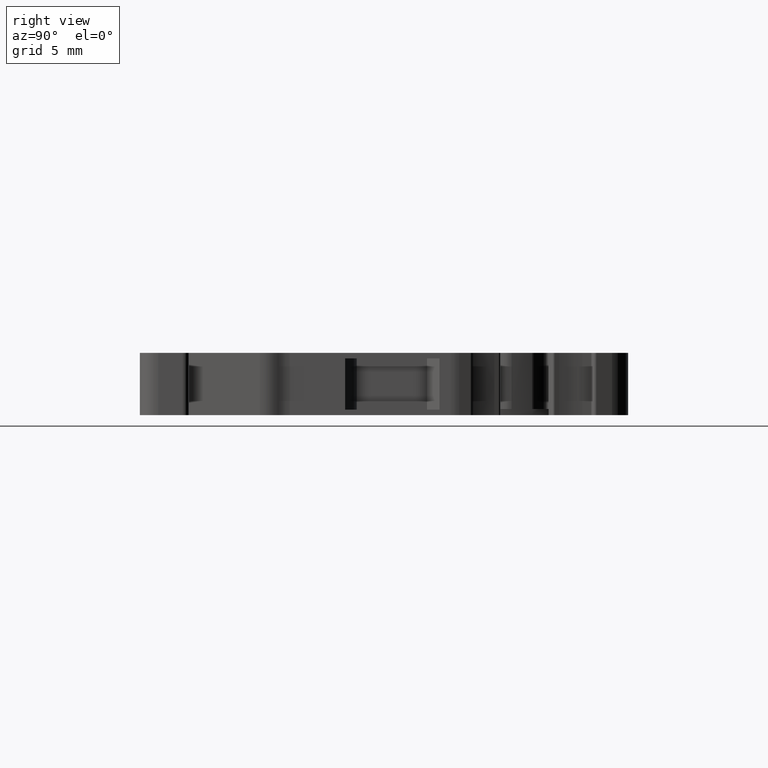
[diagram: clean part render]
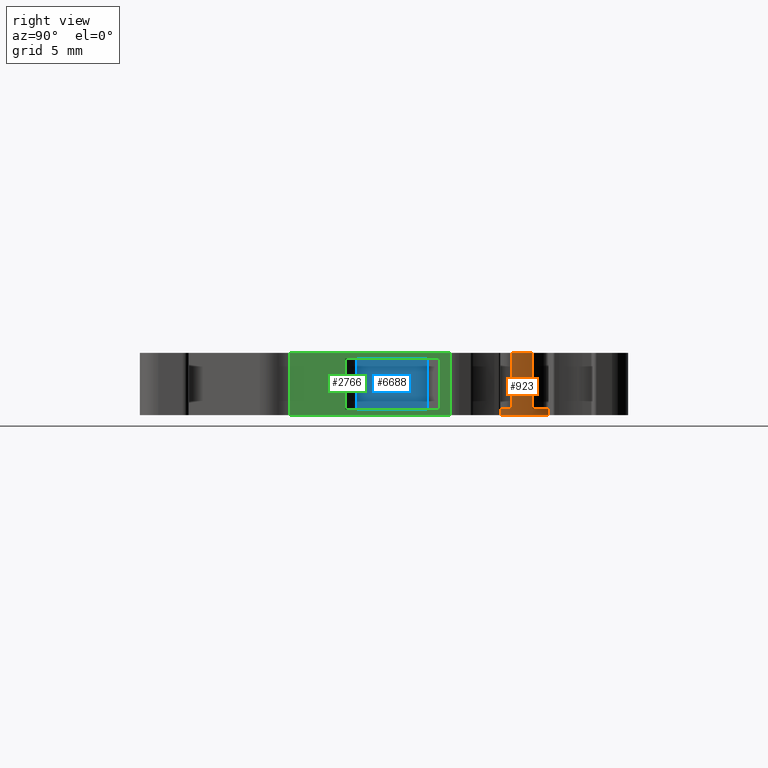
[diagram: same view with three faces highlighted in distinct colors, each labeled with its STEP entity id]
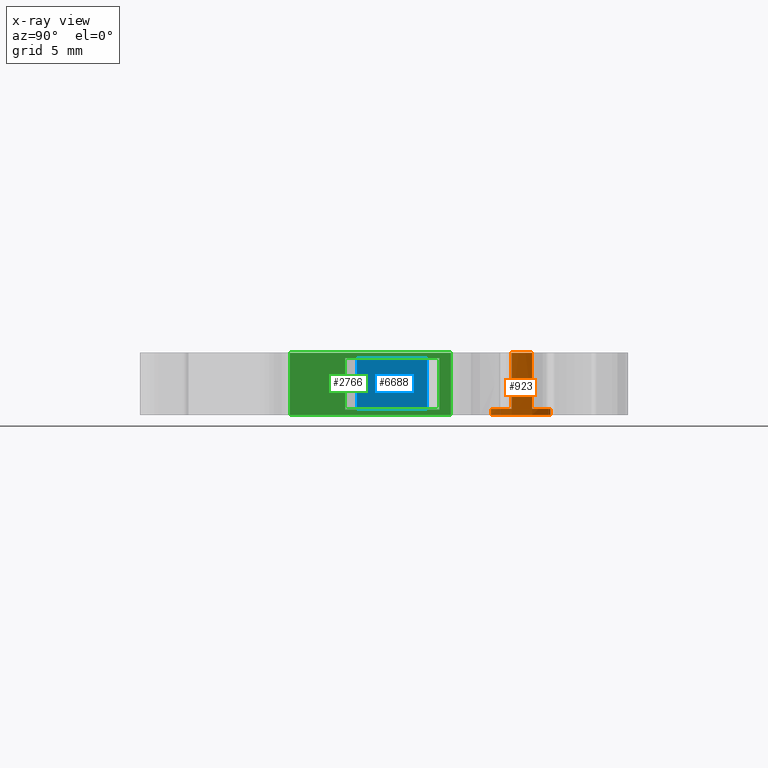
[diagram: x-ray of the same camera — body ghosted, the three highlighted faces saturated]
A machine part, right view with three faces highlighted in distinct colors.
The next image is the same camera in x-ray (body ghosted, the three faces saturated) — at least one of them is partly hidden behind the body in this view.
Their STEP definitions:

[orange] entity #923 — the highlighted cylindrical surface (partial cylindrical patch) has radius 10 mm, axis along (0, 0, 1).
#37 = FACE_OUTER_BOUND ( 'NONE', #2927, .T. ) ;
#88 = LINE ( 'NONE', #1789, #7217 ) ;
#91 = DIRECTION ( 'NONE',  ( 0.0000000000000000000, 0.0000000000000000000, -1.000000000000000000 ) ) ;
#115 = CARTESIAN_POINT ( 'NONE',  ( 1465.851264466720100, 945.3661758015759900, -47.55000000000000400 ) ) ;
#176 = CIRCLE ( 'NONE', #4218, 9.999999999999564800 ) ;
#200 = VERTEX_POINT ( 'NONE', #1953 ) ;
#275 = AXIS2_PLACEMENT_3D ( 'NONE', #115, #5643, #5671 ) ;
#331 = EDGE_CURVE ( 'NONE', #4099, #1749, #921, .T. ) ;
#523 = DIRECTION ( 'NONE',  ( 0.0000000000000000000, 0.0000000000000000000, -1.000000000000000000 ) ) ;
#684 = AXIS2_PLACEMENT_3D ( 'NONE', #7539, #8324, #4808 ) ;
#702 = CARTESIAN_POINT ( 'NONE',  ( 1465.851264466720100, 945.3661758015759900, -48.05000000000000400 ) ) ;
#813 = EDGE_CURVE ( 'NONE', #6257, #8623, #5414, .T. ) ;
#921 = CIRCLE ( 'NONE', #684, 10.00000000000023100 ) ;
#923 = ADVANCED_FACE ( 'NONE', ( #37 ), #8716, .T. ) ;
#971 = EDGE_CURVE ( 'NONE', #7313, #6257, #4530, .T. ) ;
#1104 = CARTESIAN_POINT ( 'NONE',  ( 1474.032254016908200, 951.1169505302278800, -47.55000000000000400 ) ) ;
#1247 = CARTESIAN_POINT ( 'NONE',  ( 1465.851264466720100, 945.3661758015759900, -47.55000000000000400 ) ) ;
#1369 = CARTESIAN_POINT ( 'NONE',  ( 1475.516388186390000, 947.9323760048860100, -42.94999999999999600 ) ) ;
#1727 = EDGE_CURVE ( 'NONE', #2644, #200, #4605, .T. ) ;
#1733 = DIRECTION ( 'NONE',  ( 0.0000000000000000000, 0.0000000000000000000, -1.000000000000000000 ) ) ;
#1739 = CARTESIAN_POINT ( 'NONE',  ( 1465.851264466720100, 945.3661758015759900, -48.79999999999999700 ) ) ;
#1749 = VERTEX_POINT ( 'NONE', #4304 ) ;
#1773 = ORIENTED_EDGE ( 'NONE', *, *, #813, .T. ) ;
#1789 = CARTESIAN_POINT ( 'NONE',  ( 1474.904638512021800, 949.6131062690830000, -43.60000000000000100 ) ) ;
#1953 = CARTESIAN_POINT ( 'NONE',  ( 1474.904638512021800, 949.6131062690830000, -47.55000000000000400 ) ) ;
#2018 = ORIENTED_EDGE ( 'NONE', *, *, #5631, .T. ) ;
#2143 = CARTESIAN_POINT ( 'NONE',  ( 1475.516387835675000, 947.9323773257891600, -47.55000000000000400 ) ) ;
#2183 = VECTOR ( 'NONE', #1733, 1000.000000000000000 ) ;
#2279 = EDGE_CURVE ( 'NONE', #4099, #6030, #7769, .T. ) ;
#2644 = VERTEX_POINT ( 'NONE', #1104 ) ;
#2665 = ORIENTED_EDGE ( 'NONE', *, *, #2279, .T. ) ;
#2703 = EDGE_CURVE ( 'NONE', #1749, #200, #88, .T. ) ;
#2927 = EDGE_LOOP ( 'NONE', ( #1773, #6901, #6608, #8776, #8206, #2665, #2018, #3823 ) ) ;
#3116 = CARTESIAN_POINT ( 'NONE',  ( 1474.032254016908200, 951.1169505302278800, -47.55000000000000400 ) ) ;
#3126 = DIRECTION ( 'NONE',  ( 0.0000000000000000000, 0.0000000000000000000, 1.000000000000000000 ) ) ;
#3254 = AXIS2_PLACEMENT_3D ( 'NONE', #1739, #3126, #3775 ) ;
#3593 = CARTESIAN_POINT ( 'NONE',  ( 1475.516388186390000, 947.9323760048860100, -43.60000000000000100 ) ) ;
#3775 = DIRECTION ( 'NONE',  ( 1.000000000000000000, 0.0000000000000000000, 0.0000000000000000000 ) ) ;
#3823 = ORIENTED_EDGE ( 'NONE', *, *, #971, .T. ) ;
#4008 = AXIS2_PLACEMENT_3D ( 'NONE', #702, #7615, #6211 ) ;
#4099 = VERTEX_POINT ( 'NONE', #1369 ) ;
#4218 = AXIS2_PLACEMENT_3D ( 'NONE', #1247, #523, #6031 ) ;
#4304 = CARTESIAN_POINT ( 'NONE',  ( 1474.904638512021800, 949.6131062690830000, -42.94999999999999600 ) ) ;
#4445 = DIRECTION ( 'NONE',  ( 0.0000000000000000000, 0.0000000000000000000, -1.000000000000000000 ) ) ;
#4530 = LINE ( 'NONE', #7942, #8489 ) ;
#4605 = CIRCLE ( 'NONE', #275, 9.999999999999564800 ) ;
#4808 = DIRECTION ( 'NONE',  ( -1.000000000000000000, -6.661338147750785300E-014, 0.0000000000000000000 ) ) ;
#5262 = DIRECTION ( 'NONE',  ( 0.0000000000000000000, 0.0000000000000000000, -1.000000000000000000 ) ) ;
#5414 = CIRCLE ( 'NONE', #4008, 10.00000000000023100 ) ;
#5474 = CARTESIAN_POINT ( 'NONE',  ( 1475.814780077720300, 946.2196139477476900, -47.55000000000000400 ) ) ;
#5631 = EDGE_CURVE ( 'NONE', #6030, #7313, #176, .T. ) ;
#5643 = DIRECTION ( 'NONE',  ( 0.0000000000000000000, 0.0000000000000000000, -1.000000000000000000 ) ) ;
#5671 = DIRECTION ( 'NONE',  ( -1.000000000000000000, 0.0000000000000000000, 0.0000000000000000000 ) ) ;
#5692 = CARTESIAN_POINT ( 'NONE',  ( 1474.032254016908200, 951.1169505302278800, -48.05000000000000400 ) ) ;
#6030 = VERTEX_POINT ( 'NONE', #2143 ) ;
#6031 = DIRECTION ( 'NONE',  ( -1.000000000000000000, 0.0000000000000000000, 0.0000000000000000000 ) ) ;
#6211 = DIRECTION ( 'NONE',  ( 1.000000000000000000, 0.0000000000000000000, 0.0000000000000000000 ) ) ;
#6257 = VERTEX_POINT ( 'NONE', #7337 ) ;
#6282 = LINE ( 'NONE', #3116, #2183 ) ;
#6608 = ORIENTED_EDGE ( 'NONE', *, *, #1727, .T. ) ;
#6901 = ORIENTED_EDGE ( 'NONE', *, *, #7051, .F. ) ;
#7051 = EDGE_CURVE ( 'NONE', #2644, #8623, #6282, .T. ) ;
#7217 = VECTOR ( 'NONE', #5262, 1000.000000000000000 ) ;
#7313 = VERTEX_POINT ( 'NONE', #5474 ) ;
#7337 = CARTESIAN_POINT ( 'NONE',  ( 1475.814780077720300, 946.2196139477476900, -48.05000000000000400 ) ) ;
#7539 = CARTESIAN_POINT ( 'NONE',  ( 1465.851264466720100, 945.3661758015759900, -42.94999999999999600 ) ) ;
#7615 = DIRECTION ( 'NONE',  ( 0.0000000000000000000, -0.0000000000000000000, 1.000000000000000000 ) ) ;
#7769 = LINE ( 'NONE', #3593, #8989 ) ;
#7942 = CARTESIAN_POINT ( 'NONE',  ( 1475.814780077720300, 946.2196139477476900, -47.55000000000000400 ) ) ;
#8206 = ORIENTED_EDGE ( 'NONE', *, *, #331, .F. ) ;
#8324 = DIRECTION ( 'NONE',  ( -0.0000000000000000000, -0.0000000000000000000, 1.000000000000000000 ) ) ;
#8489 = VECTOR ( 'NONE', #4445, 1000.000000000000000 ) ;
#8623 = VERTEX_POINT ( 'NONE', #5692 ) ;
#8716 = CYLINDRICAL_SURFACE ( 'NONE', #3254, 10.00000000000023100 ) ;
#8776 = ORIENTED_EDGE ( 'NONE', *, *, #2703, .F. ) ;
#8989 = VECTOR ( 'NONE', #91, 1000.000000000000000 ) ;

[blue] entity #6688 — the highlighted planar face has unit normal (1, 0, -0).
#90 = CARTESIAN_POINT ( 'NONE',  ( 1477.966615531489900, 935.2383513340429300, -47.60000000010222700 ) ) ;
#305 = VECTOR ( 'NONE', #5287, 1000.000000000000000 ) ;
#615 = EDGE_CURVE ( 'NONE', #6949, #1208, #2297, .T. ) ;
#787 = EDGE_CURVE ( 'NONE', #1208, #8026, #1769, .T. ) ;
#805 = CARTESIAN_POINT ( 'NONE',  ( 1477.966615939144000, 936.2292095070029100, -47.60000000000700700 ) ) ;
#910 = VECTOR ( 'NONE', #1870, 1000.000000000000100 ) ;
#996 = EDGE_CURVE ( 'NONE', #6949, #5527, #2719, .T. ) ;
#1208 = VERTEX_POINT ( 'NONE', #5079 ) ;
#1331 = CARTESIAN_POINT ( 'NONE',  ( 1477.966615531489900, 940.9912914838009800, -22.23802498709803600 ) ) ;
#1451 = DIRECTION ( 'NONE',  ( 8.148767531104092100E-008, -0.9999999999999966700, 0.0000000000000000000 ) ) ;
#1478 = DIRECTION ( 'NONE',  ( -8.224100143811932700E-008, 0.9999999999999965600, 8.339686960877372400E-012 ) ) ;
#1617 = AXIS2_PLACEMENT_3D ( 'NONE', #3009, #7914, #8560 ) ;
#1718 = LINE ( 'NONE', #8796, #305 ) ;
#1769 = LINE ( 'NONE', #1331, #8058 ) ;
#1870 = DIRECTION ( 'NONE',  ( -8.224100143811932700E-008, 0.9999999999999965600, -8.339686960877372400E-012 ) ) ;
#2039 = VECTOR ( 'NONE', #4698, 1000.000000000000000 ) ;
#2057 = LINE ( 'NONE', #805, #8908 ) ;
#2297 = LINE ( 'NONE', #2648, #910 ) ;
#2366 = VECTOR ( 'NONE', #1478, 1000.000000000000100 ) ;
#2478 = LINE ( 'NONE', #7030, #2366 ) ;
#2518 = CARTESIAN_POINT ( 'NONE',  ( 1477.966615531495100, 936.2292175914910800, -47.59999998220724400 ) ) ;
#2519 = ORIENTED_EDGE ( 'NONE', *, *, #3589, .T. ) ;
#2595 = VERTEX_POINT ( 'NONE', #3064 ) ;
#2648 = CARTESIAN_POINT ( 'NONE',  ( 1477.966616123826000, 933.7888144274719500, -43.39999999992429000 ) ) ;
#2680 = LINE ( 'NONE', #4639, #2039 ) ;
#2719 = LINE ( 'NONE', #7267, #7713 ) ;
#3009 = CARTESIAN_POINT ( 'NONE',  ( 1477.966615531489900, 940.9912914838009800, -22.23802498709803600 ) ) ;
#3063 = ORIENTED_EDGE ( 'NONE', *, *, #615, .F. ) ;
#3064 = CARTESIAN_POINT ( 'NONE',  ( 1477.966615531489900, 935.2383513340429300, -43.39999999989777300 ) ) ;
#3132 = CARTESIAN_POINT ( 'NONE',  ( 1477.966615531499900, 933.7478076158520300, -47.60000000007604400 ) ) ;
#3416 = ORIENTED_EDGE ( 'NONE', *, *, #4687, .T. ) ;
#3589 = EDGE_CURVE ( 'NONE', #6359, #8026, #2478, .T. ) ;
#3603 = VERTEX_POINT ( 'NONE', #90 ) ;
#3682 = PLANE ( 'NONE',  #1617 ) ;
#4296 = EDGE_CURVE ( 'NONE', #2595, #3603, #2680, .T. ) ;
#4364 = ORIENTED_EDGE ( 'NONE', *, *, #787, .F. ) ;
#4475 = DIRECTION ( 'NONE',  ( 0.0000000000000000000, -1.000000000000000000, 8.339686960877850600E-012 ) ) ;
#4639 = CARTESIAN_POINT ( 'NONE',  ( 1477.966615531489900, 935.2383513340429300, -500041.8000000000500 ) ) ;
#4687 = EDGE_CURVE ( 'NONE', #5527, #2595, #1718, .T. ) ;
#4698 = DIRECTION ( 'NONE',  ( -0.0000000000000000000, -0.0000000000000000000, -1.000000000000000000 ) ) ;
#5079 = CARTESIAN_POINT ( 'NONE',  ( 1477.966615531489900, 940.9912914838009800, -43.39999999995461600 ) ) ;
#5091 = VECTOR ( 'NONE', #7365, 1000.000000000000000 ) ;
#5287 = DIRECTION ( 'NONE',  ( 8.148767531104092100E-008, -0.9999999999999966700, 0.0000000000000000000 ) ) ;
#5342 = ORIENTED_EDGE ( 'NONE', *, *, #996, .T. ) ;
#5452 = ORIENTED_EDGE ( 'NONE', *, *, #7441, .F. ) ;
#5473 = DIRECTION ( 'NONE',  ( 0.0000000000000000000, 0.0000000000000000000, -1.000000000000000000 ) ) ;
#5513 = CARTESIAN_POINT ( 'NONE',  ( 1477.966615531499900, 939.5585372372670500, -43.39999999997241500 ) ) ;
#5527 = VERTEX_POINT ( 'NONE', #8097 ) ;
#5721 = ORIENTED_EDGE ( 'NONE', *, *, #6207, .F. ) ;
#6207 = EDGE_CURVE ( 'NONE', #6359, #7978, #6972, .T. ) ;
#6231 = CARTESIAN_POINT ( 'NONE',  ( 1477.966615531499900, 939.5585372372670500, -47.60000000002758500 ) ) ;
#6359 = VERTEX_POINT ( 'NONE', #6231 ) ;
#6688 = ADVANCED_FACE ( 'NONE', ( #7706 ), #3682, .T. ) ;
#6949 = VERTEX_POINT ( 'NONE', #5513 ) ;
#6972 = LINE ( 'NONE', #3132, #5091 ) ;
#7030 = CARTESIAN_POINT ( 'NONE',  ( 1477.966616123826000, 933.7888144274719500, -47.60000000007571000 ) ) ;
#7267 = CARTESIAN_POINT ( 'NONE',  ( 1477.966615531499900, 933.7478076158520300, -43.39999999992394900 ) ) ;
#7365 = DIRECTION ( 'NONE',  ( 0.0000000000000000000, -1.000000000000000000, -8.339686960877850600E-012 ) ) ;
#7441 = EDGE_CURVE ( 'NONE', #7978, #3603, #2057, .T. ) ;
#7583 = ORIENTED_EDGE ( 'NONE', *, *, #4296, .T. ) ;
#7706 = FACE_OUTER_BOUND ( 'NONE', #8426, .T. ) ;
#7713 = VECTOR ( 'NONE', #4475, 1000.000000000000000 ) ;
#7914 = DIRECTION ( 'NONE',  ( 1.000000000000000000, 0.0000000000000000000, -0.0000000000000000000 ) ) ;
#7978 = VERTEX_POINT ( 'NONE', #2518 ) ;
#8026 = VERTEX_POINT ( 'NONE', #8935 ) ;
#8058 = VECTOR ( 'NONE', #5473, 1000.000000000000000 ) ;
#8097 = CARTESIAN_POINT ( 'NONE',  ( 1477.966615531495100, 936.2292175914910800, -43.40000001779275600 ) ) ;
#8426 = EDGE_LOOP ( 'NONE', ( #3063, #5342, #3416, #7583, #5452, #5721, #2519, #4364 ) ) ;
#8560 = DIRECTION ( 'NONE',  ( 0.0000000000000000000, 0.0000000000000000000, 1.000000000000000000 ) ) ;
#8796 = CARTESIAN_POINT ( 'NONE',  ( 1477.966615939144000, 936.2292095070029100, -43.39999999999299300 ) ) ;
#8908 = VECTOR ( 'NONE', #1451, 1000.000000000000000 ) ;
#8935 = CARTESIAN_POINT ( 'NONE',  ( 1477.966615531489900, 940.9912914838009800, -47.60000000004538400 ) ) ;

[green] entity #2766 — the highlighted planar face has unit normal (1, 0, 0).
#42 = DIRECTION ( 'NONE',  ( 0.0000000000000000000, 0.0000000000000000000, -1.000000000000000000 ) ) ;
#171 = AXIS2_PLACEMENT_3D ( 'NONE', #2563, #1250, #8192 ) ;
#374 = CARTESIAN_POINT ( 'NONE',  ( 1480.178075896574000, 942.9495760049989000, -42.94999999999999600 ) ) ;
#497 = LINE ( 'NONE', #7185, #7416 ) ;
#509 = ORIENTED_EDGE ( 'NONE', *, *, #1168, .F. ) ;
#521 = ORIENTED_EDGE ( 'NONE', *, *, #2790, .F. ) ;
#594 = EDGE_CURVE ( 'NONE', #3841, #2659, #4436, .T. ) ;
#638 = CARTESIAN_POINT ( 'NONE',  ( 1480.178075972492000, 942.0225126443699500, -43.39999999999299300 ) ) ;
#736 = CARTESIAN_POINT ( 'NONE',  ( 1480.178076980804200, 929.7507111823320000, -48.79999999999999700 ) ) ;
#915 = DIRECTION ( 'NONE',  ( 8.214571098364563000E-008, -0.9999999999999965600, -0.0000000000000000000 ) ) ;
#961 = VECTOR ( 'NONE', #3278, 1000.000000000000000 ) ;
#1135 = CARTESIAN_POINT ( 'NONE',  ( 1480.178076608022100, 934.2887671033020100, -47.60000000007571000 ) ) ;
#1168 = EDGE_CURVE ( 'NONE', #4801, #3871, #7496, .T. ) ;
#1248 = CARTESIAN_POINT ( 'NONE',  ( 1480.178075972492000, 942.0225126443699500, -47.60000000000700700 ) ) ;
#1250 = DIRECTION ( 'NONE',  ( 0.9999999999999966700, 8.214571098364564400E-008, 0.0000000000000000000 ) ) ;
#1526 = ORIENTED_EDGE ( 'NONE', *, *, #1714, .F. ) ;
#1591 = ORIENTED_EDGE ( 'NONE', *, *, #2915, .F. ) ;
#1595 = ORIENTED_EDGE ( 'NONE', *, *, #4705, .T. ) ;
#1650 = EDGE_LOOP ( 'NONE', ( #1591, #3032, #7541, #1595 ) ) ;
#1714 = EDGE_CURVE ( 'NONE', #7587, #4801, #4394, .T. ) ;
#1761 = VECTOR ( 'NONE', #42, 1000.000000000000000 ) ;
#1857 = VERTEX_POINT ( 'NONE', #1248 ) ;
#2031 = LINE ( 'NONE', #2884, #6015 ) ;
#2032 = CARTESIAN_POINT ( 'NONE',  ( 1480.178076624402100, 934.2887670956349700, -42.59999999992429300 ) ) ;
#2552 = EDGE_CURVE ( 'NONE', #1857, #3871, #4155, .T. ) ;
#2563 = CARTESIAN_POINT ( 'NONE',  ( 1480.178079134952200, 903.5272105145279500, -48.79999999999999700 ) ) ;
#2628 = VECTOR ( 'NONE', #5165, 1000.000000000000000 ) ;
#2659 = VERTEX_POINT ( 'NONE', #374 ) ;
#2718 = VERTEX_POINT ( 'NONE', #8133 ) ;
#2766 = ADVANCED_FACE ( 'NONE', ( #3424, #6464 ), #8896, .T. ) ;
#2790 = EDGE_CURVE ( 'NONE', #1857, #7587, #7648, .T. ) ;
#2884 = CARTESIAN_POINT ( 'NONE',  ( 1480.178079134952200, 903.5272105145279500, -48.05000000000000400 ) ) ;
#2915 = EDGE_CURVE ( 'NONE', #3841, #2718, #2031, .T. ) ;
#3032 = ORIENTED_EDGE ( 'NONE', *, *, #594, .T. ) ;
#3060 = VERTEX_POINT ( 'NONE', #4356 ) ;
#3102 = CARTESIAN_POINT ( 'NONE',  ( 1480.178075896574000, 942.9495760049989000, -48.05000000000000400 ) ) ;
#3197 = LINE ( 'NONE', #736, #4925 ) ;
#3278 = DIRECTION ( 'NONE',  ( 0.0000000000000000000, 0.0000000000000000000, 1.000000000000000000 ) ) ;
#3424 = FACE_OUTER_BOUND ( 'NONE', #1650, .T. ) ;
#3437 = DIRECTION ( 'NONE',  ( 8.214571098364563000E-008, -0.9999999999999965600, -8.339686960877852200E-012 ) ) ;
#3841 = VERTEX_POINT ( 'NONE', #3102 ) ;
#3871 = VERTEX_POINT ( 'NONE', #1135 ) ;
#3973 = EDGE_LOOP ( 'NONE', ( #521, #7824, #509, #1526 ) ) ;
#3999 = CARTESIAN_POINT ( 'NONE',  ( 1480.178075972580000, 942.0225126443970100, -47.60000000000700000 ) ) ;
#4155 = LINE ( 'NONE', #4845, #6455 ) ;
#4356 = CARTESIAN_POINT ( 'NONE',  ( 1480.178076980804200, 929.7507111823320000, -42.94999999999999600 ) ) ;
#4394 = LINE ( 'NONE', #7020, #6470 ) ;
#4436 = LINE ( 'NONE', #8032, #2628 ) ;
#4705 = EDGE_CURVE ( 'NONE', #3060, #2718, #3197, .T. ) ;
#4794 = DIRECTION ( 'NONE',  ( -0.0000000000000000000, -0.0000000000000000000, -1.000000000000000000 ) ) ;
#4801 = VERTEX_POINT ( 'NONE', #8423 ) ;
#4845 = CARTESIAN_POINT ( 'NONE',  ( 1480.178079134952200, 903.5272105145730800, -47.60000000032800200 ) ) ;
#4925 = VECTOR ( 'NONE', #4794, 1000.000000000000000 ) ;
#4939 = DIRECTION ( 'NONE',  ( 8.214571098364563000E-008, -0.9999999999999965600, 8.339686960877852200E-012 ) ) ;
#5003 = DIRECTION ( 'NONE',  ( 8.214571098364563000E-008, -0.9999999999999965600, 0.0000000000000000000 ) ) ;
#5165 = DIRECTION ( 'NONE',  ( 0.0000000000000000000, 0.0000000000000000000, 1.000000000000000000 ) ) ;
#6015 = VECTOR ( 'NONE', #915, 1000.000000000000100 ) ;
#6455 = VECTOR ( 'NONE', #3437, 1000.000000000000100 ) ;
#6464 = FACE_BOUND ( 'NONE', #3973, .T. ) ;
#6470 = VECTOR ( 'NONE', #4939, 1000.000000000000100 ) ;
#7020 = CARTESIAN_POINT ( 'NONE',  ( 1480.178079134952200, 903.5272105145730800, -43.39999999967199100 ) ) ;
#7185 = CARTESIAN_POINT ( 'NONE',  ( 1480.178153355827400, 0.0001215902867898745000, -42.94999999999999600 ) ) ;
#7416 = VECTOR ( 'NONE', #5003, 1000.000000000000100 ) ;
#7496 = LINE ( 'NONE', #2032, #1761 ) ;
#7541 = ORIENTED_EDGE ( 'NONE', *, *, #7625, .T. ) ;
#7587 = VERTEX_POINT ( 'NONE', #638 ) ;
#7625 = EDGE_CURVE ( 'NONE', #2659, #3060, #497, .T. ) ;
#7648 = LINE ( 'NONE', #3999, #961 ) ;
#7824 = ORIENTED_EDGE ( 'NONE', *, *, #2552, .T. ) ;
#8032 = CARTESIAN_POINT ( 'NONE',  ( 1480.178075896574000, 942.9495760049989000, -48.79999999999999700 ) ) ;
#8133 = CARTESIAN_POINT ( 'NONE',  ( 1480.178076980804200, 929.7507111823320000, -48.05000000000000400 ) ) ;
#8192 = DIRECTION ( 'NONE',  ( 8.214571098364563000E-008, -0.9999999999999965600, 0.0000000000000000000 ) ) ;
#8423 = CARTESIAN_POINT ( 'NONE',  ( 1480.178076608022100, 934.2887671033020100, -43.39999999992429000 ) ) ;
#8896 = PLANE ( 'NONE',  #171 ) ;